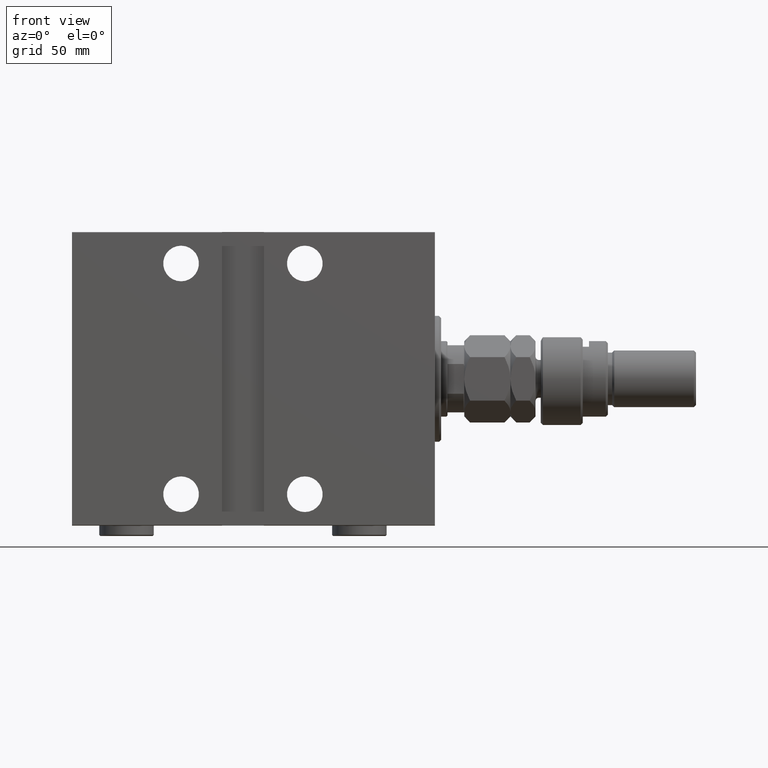
[diagram: clean part render]
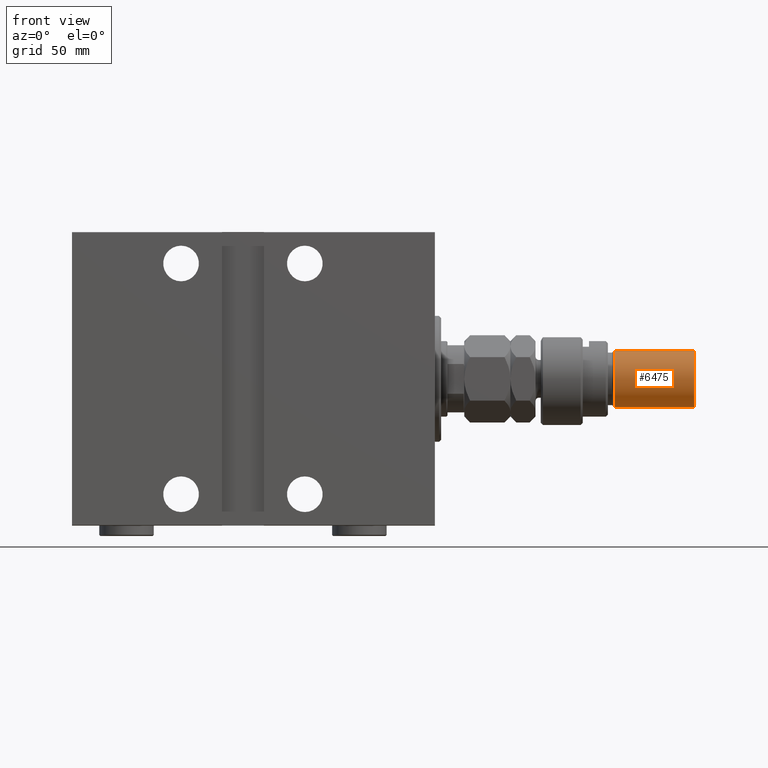
[diagram: same view with one face highlighted and labeled with its STEP entity id]
A machine part, front view. The second image highlights one B-rep face of the part: STEP entity #6475.
In plain terms, the highlighted cylindrical surface (edge-blend (fillet) strip) has radius 13.5 mm, axis along (-1, -0, 0).
Its self-contained STEP definition (entity closure, byte-faithful):
#1588 = EDGE_CURVE ( 'NONE', #3601, #46870, #19814, .T. ) ;
#3601 = VERTEX_POINT ( 'NONE', #6399 ) ;
#4060 = VERTEX_POINT ( 'NONE', #40149 ) ;
#4999 = VECTOR ( 'NONE', #16237, 1000.000000000000000 ) ;
#5585 = CIRCLE ( 'NONE', #10910, 13.50000000000000000 ) ;
#6399 = CARTESIAN_POINT ( 'NONE',  ( -13.50000000000000000, 0.000000000000000000, 73.00000000000001421 ) ) ;
#6475 = ADVANCED_FACE ( 'NONE', ( #35497 ), #31908, .T. ) ;
#7420 = LINE ( 'NONE', #37052, #21986 ) ;
#7906 = ORIENTED_EDGE ( 'NONE', *, *, #34802, .F. ) ;
#9272 = CIRCLE ( 'NONE', #36777, 13.50000000000000000 ) ;
#10910 = AXIS2_PLACEMENT_3D ( 'NONE', #46558, #21468, #32932 ) ;
#12897 = CARTESIAN_POINT ( 'NONE',  ( -13.50000000000000000, 0.000000000000000000, 74.00000000000001421 ) ) ;
#13549 = EDGE_LOOP ( 'NONE', ( #7906, #14236, #28244, #14340 ) ) ;
#14236 = ORIENTED_EDGE ( 'NONE', *, *, #20575, .T. ) ;
#14340 = ORIENTED_EDGE ( 'NONE', *, *, #23487, .T. ) ;
#15182 = DIRECTION ( 'NONE',  ( 0.000000000000000000, 0.000000000000000000, -1.000000000000000000 ) ) ;
#16237 = DIRECTION ( 'NONE',  ( -0.000000000000000000, -0.000000000000000000, -1.000000000000000000 ) ) ;
#19814 = LINE ( 'NONE', #12897, #4999 ) ;
#20575 = EDGE_CURVE ( 'NONE', #4060, #3601, #9272, .T. ) ;
#20909 = DIRECTION ( 'NONE',  ( -1.000000000000000000, 0.000000000000000000, 0.000000000000000000 ) ) ;
#21468 = DIRECTION ( 'NONE',  ( -0.000000000000000000, -0.000000000000000000, 1.000000000000000000 ) ) ;
#21986 = VECTOR ( 'NONE', #22002, 1000.000000000000000 ) ;
#22002 = DIRECTION ( 'NONE',  ( -0.000000000000000000, -0.000000000000000000, -1.000000000000000000 ) ) ;
#23487 = EDGE_CURVE ( 'NONE', #46870, #43248, #5585, .T. ) ;
#28244 = ORIENTED_EDGE ( 'NONE', *, *, #1588, .T. ) ;
#28554 = DIRECTION ( 'NONE',  ( -0.000000000000000000, -0.000000000000000000, -1.000000000000000000 ) ) ;
#29765 = CARTESIAN_POINT ( 'NONE',  ( 0.000000000000000000, 0.000000000000000000, 73.00000000000001421 ) ) ;
#30489 = CARTESIAN_POINT ( 'NONE',  ( 13.50000000000000000, 1.653273178848926867E-15, 34.99999999999999289 ) ) ;
#31908 = CYLINDRICAL_SURFACE ( 'NONE', #44845, 13.50000000000000000 ) ;
#32932 = DIRECTION ( 'NONE',  ( 1.000000000000000000, 0.000000000000000000, 0.000000000000000000 ) ) ;
#34802 = EDGE_CURVE ( 'NONE', #4060, #43248, #7420, .T. ) ;
#35497 = FACE_OUTER_BOUND ( 'NONE', #13549, .T. ) ;
#36777 = AXIS2_PLACEMENT_3D ( 'NONE', #29765, #15182, #40295 ) ;
#37052 = CARTESIAN_POINT ( 'NONE',  ( 13.50000000000000000, 1.653273178848926867E-15, 74.00000000000001421 ) ) ;
#40149 = CARTESIAN_POINT ( 'NONE',  ( 13.50000000000000000, 1.653273178848926867E-15, 73.00000000000001421 ) ) ;
#40295 = DIRECTION ( 'NONE',  ( 1.000000000000000000, 0.000000000000000000, 0.000000000000000000 ) ) ;
#43132 = CARTESIAN_POINT ( 'NONE',  ( 0.000000000000000000, 0.000000000000000000, 74.00000000000001421 ) ) ;
#43248 = VERTEX_POINT ( 'NONE', #30489 ) ;
#44845 = AXIS2_PLACEMENT_3D ( 'NONE', #43132, #28554, #20909 ) ;
#44889 = CARTESIAN_POINT ( 'NONE',  ( -13.50000000000000000, 0.000000000000000000, 34.99999999999999289 ) ) ;
#46558 = CARTESIAN_POINT ( 'NONE',  ( 0.000000000000000000, 0.000000000000000000, 34.99999999999999289 ) ) ;
#46870 = VERTEX_POINT ( 'NONE', #44889 ) ;